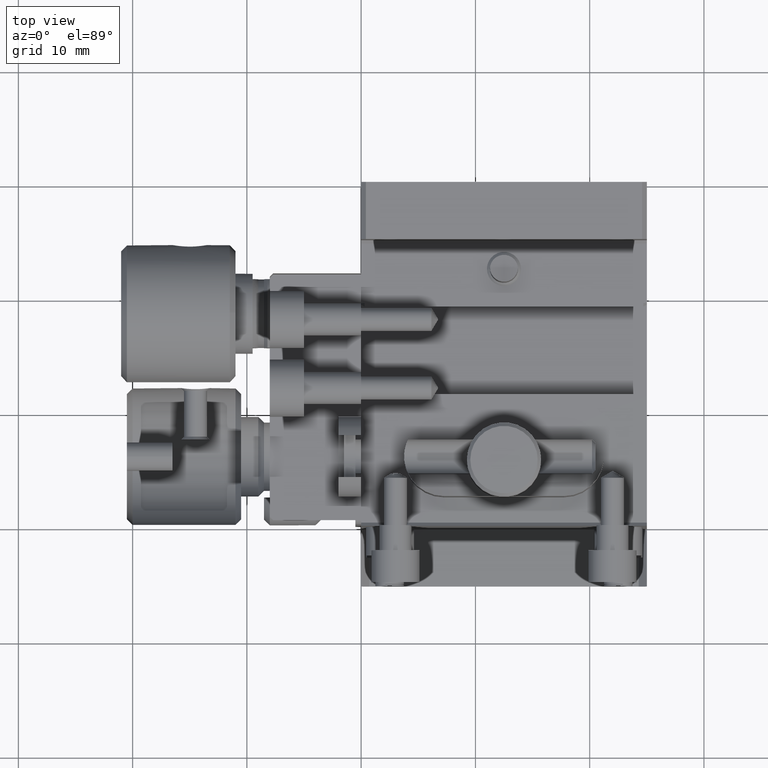
[diagram: clean part render]
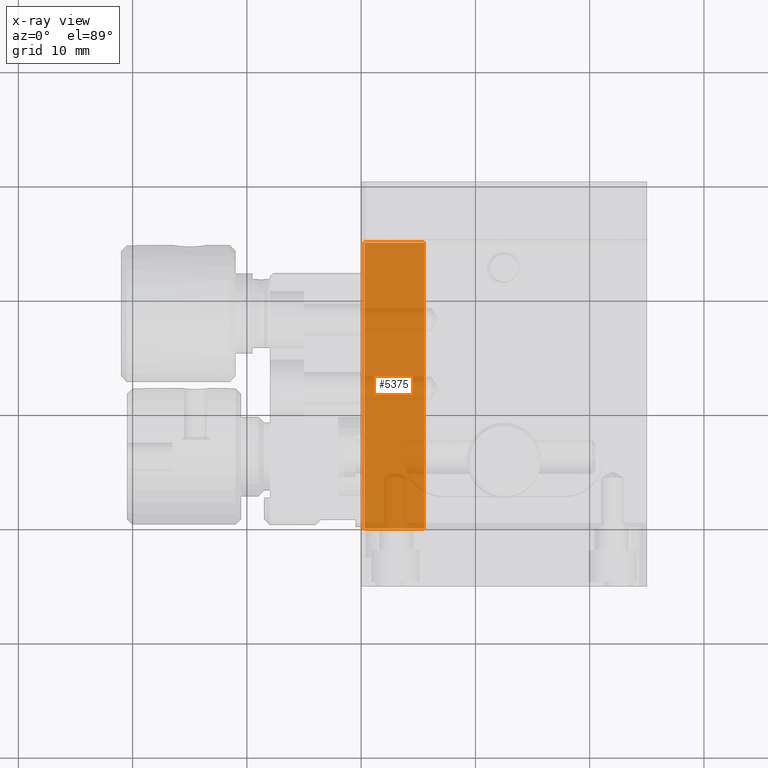
[diagram: x-ray — body ghosted, one internal face saturated and labeled with its STEP entity id]
A machine part, top view, then the same camera in x-ray: the body is ghosted and one INTERNAL B-rep face — a face not visible from any outside direction — is saturated and labeled: STEP entity #5375.
In plain terms, the highlighted planar face has unit normal (0, 0, 1).
Its self-contained STEP definition (entity closure, byte-faithful):
#132 = VECTOR ( 'NONE', #1452, 1000.000000000000000 ) ;
#151 = PLANE ( 'NONE',  #2439 ) ;
#285 = CARTESIAN_POINT ( 'NONE',  ( 5.500000000000000000, 45.00000000000000000, -20.00000000000000355 ) ) ;
#674 = CARTESIAN_POINT ( 'NONE',  ( 5.500000000000000000, 45.00000000000000000, -20.00000000000000355 ) ) ;
#1452 = DIRECTION ( 'NONE',  ( -1.000000000000000000, 0.000000000000000000, 0.000000000000000000 ) ) ;
#1480 = EDGE_LOOP ( 'NONE', ( #8366, #5923, #6284, #4732 ) ) ;
#1830 = EDGE_CURVE ( 'NONE', #4074, #8391, #5789, .T. ) ;
#1999 = DIRECTION ( 'NONE',  ( -1.000000000000000000, 0.000000000000000000, 0.000000000000000000 ) ) ;
#2168 = CARTESIAN_POINT ( 'NONE',  ( 0.3000000000000140332, 45.00000000000000000, -20.00000000000000355 ) ) ;
#2302 = EDGE_CURVE ( 'NONE', #4074, #8568, #4964, .T. ) ;
#2433 = VECTOR ( 'NONE', #2505, 1000.000000000000000 ) ;
#2439 = AXIS2_PLACEMENT_3D ( 'NONE', #285, #5989, #8121 ) ;
#2505 = DIRECTION ( 'NONE',  ( 0.000000000000000000, 1.000000000000000000, 0.000000000000000000 ) ) ;
#2643 = LINE ( 'NONE', #9016, #2433 ) ;
#3155 = VECTOR ( 'NONE', #5737, 1000.000000000000000 ) ;
#3643 = CARTESIAN_POINT ( 'NONE',  ( 5.500000000000000000, 45.00000000000000000, -20.00000000000000355 ) ) ;
#4074 = VERTEX_POINT ( 'NONE', #7286 ) ;
#4686 = EDGE_CURVE ( 'NONE', #8568, #7967, #2643, .T. ) ;
#4732 = ORIENTED_EDGE ( 'NONE', *, *, #2302, .T. ) ;
#4941 = CARTESIAN_POINT ( 'NONE',  ( 0.000000000000000000, 45.00000000000000000, -20.00000000000000355 ) ) ;
#4964 = LINE ( 'NONE', #7953, #132 ) ;
#5317 = FACE_OUTER_BOUND ( 'NONE', #1480, .T. ) ;
#5375 = ADVANCED_FACE ( 'NONE', ( #5317 ), #151, .F. ) ;
#5737 = DIRECTION ( 'NONE',  ( 0.000000000000000000, 1.000000000000000000, 0.000000000000000000 ) ) ;
#5789 = LINE ( 'NONE', #3643, #3155 ) ;
#5923 = ORIENTED_EDGE ( 'NONE', *, *, #8290, .F. ) ;
#5989 = DIRECTION ( 'NONE',  ( 8.186913612747170321E-17, 0.000000000000000000, 1.000000000000000000 ) ) ;
#6284 = ORIENTED_EDGE ( 'NONE', *, *, #1830, .F. ) ;
#7286 = CARTESIAN_POINT ( 'NONE',  ( 5.500000000000000000, 20.00000000000000000, -20.00000000000000355 ) ) ;
#7481 = VECTOR ( 'NONE', #1999, 1000.000000000000000 ) ;
#7953 = CARTESIAN_POINT ( 'NONE',  ( 0.000000000000000000, 20.00000000000000000, -20.00000000000000355 ) ) ;
#7967 = VERTEX_POINT ( 'NONE', #2168 ) ;
#8121 = DIRECTION ( 'NONE',  ( 1.000000000000000000, 0.000000000000000000, -8.186913612747170321E-17 ) ) ;
#8290 = EDGE_CURVE ( 'NONE', #8391, #7967, #9255, .T. ) ;
#8366 = ORIENTED_EDGE ( 'NONE', *, *, #4686, .T. ) ;
#8391 = VERTEX_POINT ( 'NONE', #674 ) ;
#8568 = VERTEX_POINT ( 'NONE', #8930 ) ;
#8930 = CARTESIAN_POINT ( 'NONE',  ( 0.3000000000000140332, 20.00000000000000000, -20.00000000000000355 ) ) ;
#9016 = CARTESIAN_POINT ( 'NONE',  ( 0.3000000000000134781, 45.00000000000000000, -20.00000000000000355 ) ) ;
#9255 = LINE ( 'NONE', #4941, #7481 ) ;